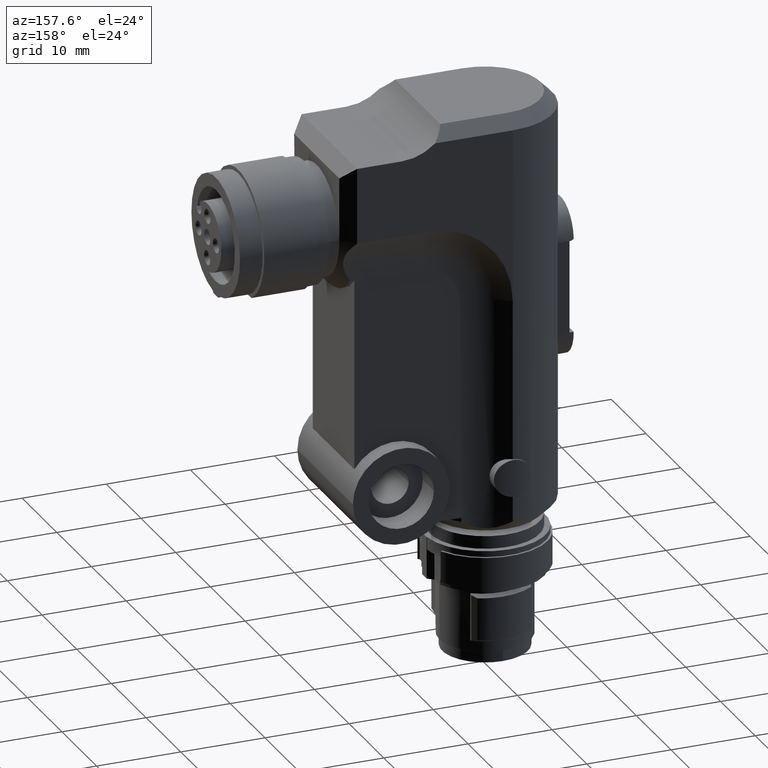
[diagram: clean part render]
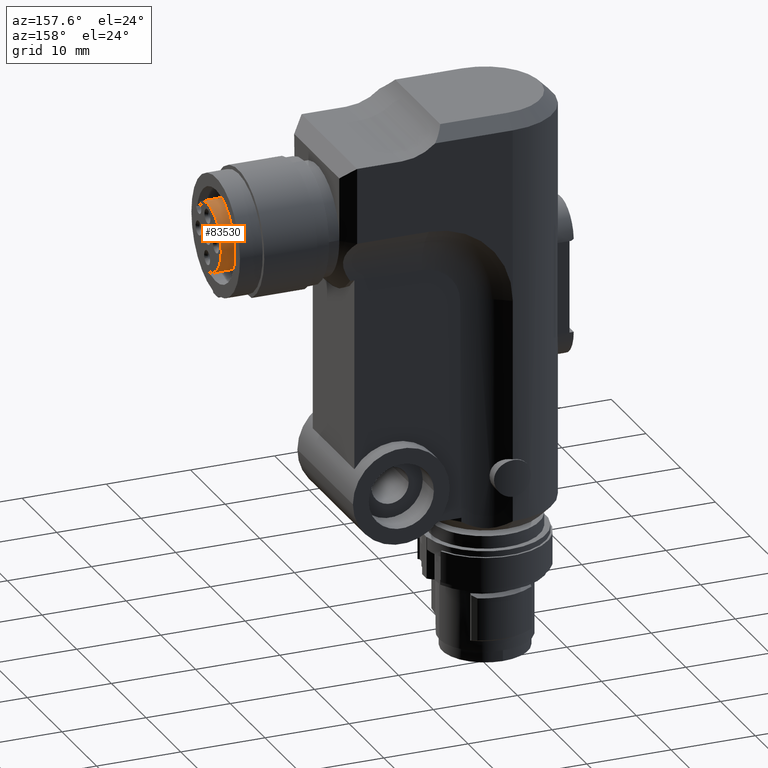
[diagram: same view with one face highlighted and labeled with its STEP entity id]
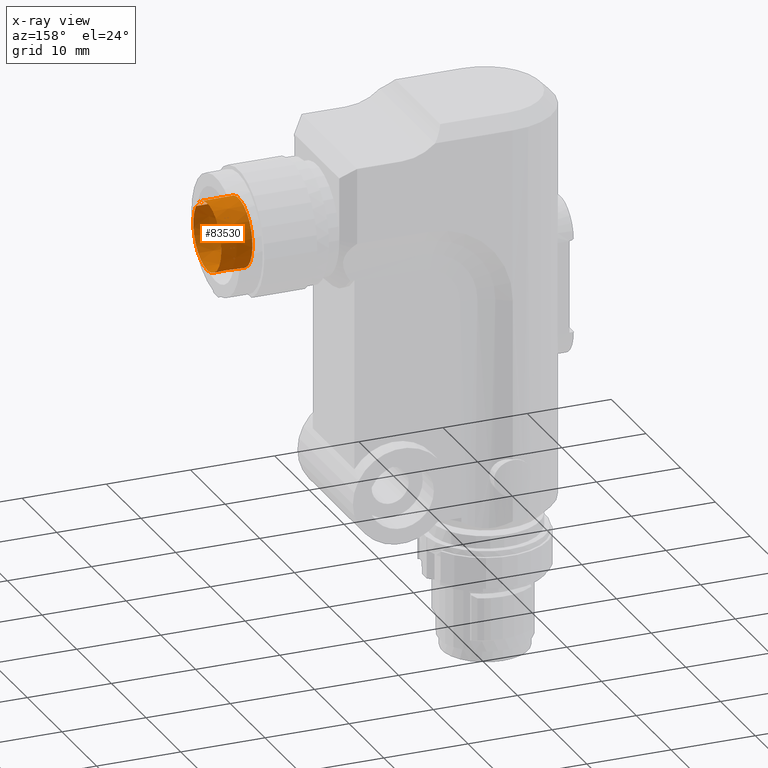
[diagram: x-ray of the same camera — body ghosted, the highlighted face saturated]
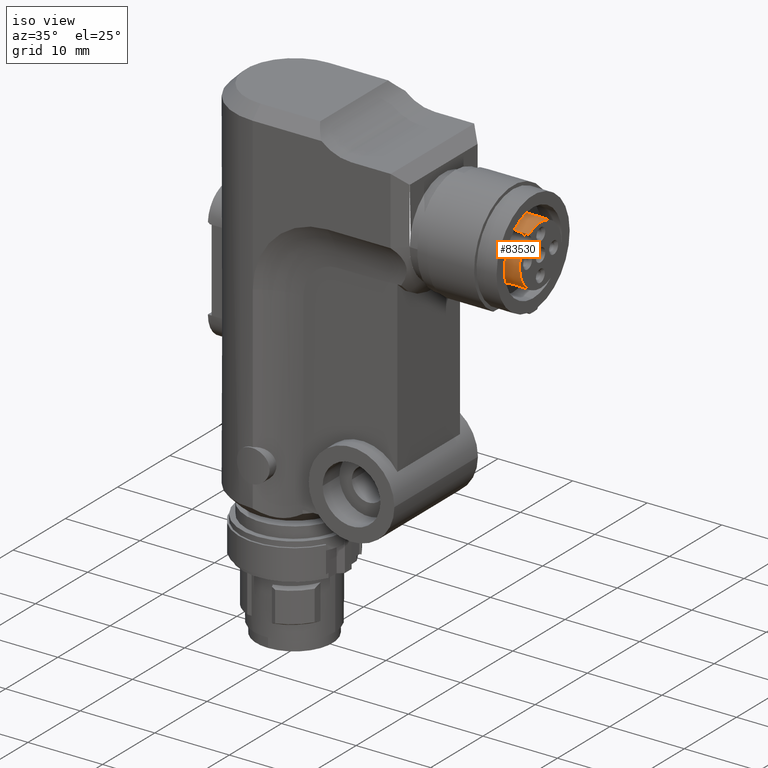
[diagram: same view with one face highlighted and labeled with its STEP entity id]
A machine part, auxiliary view. The second image highlights one B-rep face of the part: STEP entity #83530.
The next image is the same camera in x-ray: the body ghosted, the highlighted face saturated — about 0% of this face is hidden behind the body in this view.
A second angle (iso view) of the same face is appended — the face is thin or edge-on in the first view.
In plain terms, the highlighted conical surface has half-angle 0.5 deg.
Its self-contained STEP definition (entity closure, byte-faithful):
#82240=CARTESIAN_POINT('',(2.26830201667393,29.2999999999977,
41.3565850767745));
#82250=VERTEX_POINT('',#82240);
#82430=CARTESIAN_POINT('',(3.27537773714195,29.299999999997,
40.3840633581256));
#82440=VERTEX_POINT('',#82430);
#82470=CARTESIAN_POINT('',(2.52660115052095E-11,29.2999999999994,
38.0000000000005));
#82480=DIRECTION('',(-7.28965052842945E-13,-1.,-5.66198368905591E-16));
#82490=DIRECTION('',(-0.719339800334304,5.23980261126426E-13,
0.6946583704635));
#82500=AXIS2_PLACEMENT_3D('',#82470,#82480,#82490);
#82510=CIRCLE('',#82500,4.05115507187202);
#82520=EDGE_CURVE('',#82250,#82440,#82510,.T.);
#82640=CARTESIAN_POINT('',(2.24613950108955,24.0999999999982,
41.3336351200612));
#82650=DIRECTION('',(-0.719339800334303,5.20260861031725E-13,
0.6946583704635));
#82660=DIRECTION('',(-0.6946583704635,5.29020829077883E-13,
-0.719339800334304));
#82670=AXIS2_PLACEMENT_3D('',#82640,#82650,#82660);
#82680=PLANE('',#82670);
#82780=CARTESIAN_POINT('',(2.43192133098091E-11,28.,38.0000000000005));
#82790=DIRECTION('',(-7.28967519223718E-13,-1.,-5.49487385914703E-16));
#82800=DIRECTION('',(-0.719339800334304,5.23980261126426E-13,
0.6946583704635));
#82810=AXIS2_PLACEMENT_3D('',#82780,#82790,#82800);
#82820=CONICAL_SURFACE('',#82810,4.0625,0.00872664625997165);
#82830=CARTESIAN_POINT('',(2.26830201667392,29.300000000001,
41.3565850767745));
#82840=CARTESIAN_POINT('',(2.26640429658774,29.608333336283,
41.3546199300979));
#82850=CARTESIAN_POINT('',(2.26450651831933,29.9166666718344,
41.3526547231719));
#82860=CARTESIAN_POINT('',(2.2626086815087,30.2250000066502,
41.3506894556237));
#82870=CARTESIAN_POINT('',(2.26071084469808,30.5333333414661,
41.3487241880755));
#82880=CARTESIAN_POINT('',(2.25881294934523,30.8416666755464,
41.346758859905));
#82890=CARTESIAN_POINT('',(2.25691499508717,31.1500000088861,
41.3447934707364));
#82900=CARTESIAN_POINT('',(2.25501704082911,31.4583333422259,
41.3428280815677));
#82910=CARTESIAN_POINT('',(2.25311902766585,31.766666674825,
41.340862631401));
#82920=CARTESIAN_POINT('',(2.25122095523135,32.0750000066787,
41.3388971198571));
#82930=CARTESIAN_POINT('',(2.24932288279685,32.3833333385323,
41.3369316083132));
#82940=CARTESIAN_POINT('',(2.24742475109112,32.6916666696404,
41.3349660353922));
#82950=CARTESIAN_POINT('',(2.24552655974508,32.9999999999979,
41.3330004007118));
#82960=B_SPLINE_CURVE_WITH_KNOTS('',3,(#82830,#82840,#82850,#82860,
#82870,#82880,#82890,#82900,#82910,#82920,#82930,#82940,#82950),
.UNSPECIFIED.,.F.,.F.,(4,3,3,3,4),(0.,0.925036315349378,1.85007263076582
,2.77510894624748,3.70014526179251),.UNSPECIFIED.);
#82970=SURFACE_CURVE('',#82960,(#82680,#82820),.CURVE_3D.);
#82980=CARTESIAN_POINT('',(2.24552655974507,32.9999999999982,
41.3330004007117));
#82990=VERTEX_POINT('',#82980);
#83000=EDGE_CURVE('',#82250,#82990,#82970,.T.);
#83180=ORIENTED_EDGE('',*,*,#83000,.T.);
#83190=ORIENTED_EDGE('',*,*,#82520,.F.);
#83200=CARTESIAN_POINT('',(2.93484215687759,24.0999999999977,
40.0314284418459));
#83210=DIRECTION('',(0.719339800334303,-5.20260861031725E-13,
-0.6946583704635));
#83220=DIRECTION('',(0.6946583704635,-5.29020829077883E-13,
0.719339800334304));
#83230=AXIS2_PLACEMENT_3D('',#83200,#83210,#83220);
#83240=PLANE('',#83230);
#83250=CARTESIAN_POINT('',(3.25260228021311,32.9999999999977,
40.3604786820629));
#83260=CARTESIAN_POINT('',(3.25450047155898,32.6916666696675,
40.3624443167431));
#83270=CARTESIAN_POINT('',(3.25639860326458,32.3833333385801,
40.364409889664));
#83280=CARTESIAN_POINT('',(3.25829667569899,32.0750000067402,
40.3663754012078));
#83290=CARTESIAN_POINT('',(3.26019474813341,31.7666666749002,
40.3683409127516));
#83300=CARTESIAN_POINT('',(3.26209276129663,31.458333342308,
40.3703063629183));
#83310=CARTESIAN_POINT('',(3.26399071555469,31.1500000089682,
40.372271752087));
#83320=CARTESIAN_POINT('',(3.26588866981275,30.8416666756284,
40.3742371412556));
#83330=CARTESIAN_POINT('',(3.26778656516564,30.5333333415412,
40.3762024694261));
#83340=CARTESIAN_POINT('',(3.26968440197635,30.2250000067114,
40.3781677369744));
#83350=CARTESIAN_POINT('',(3.27158223878707,29.9166666718815,
40.3801330045228));
#83360=CARTESIAN_POINT('',(3.27348001705561,29.6083333363092,
40.3820982114489));
#83370=CARTESIAN_POINT('',(3.27537773714196,29.299999999999,
40.3840633581256));
#83380=B_SPLINE_CURVE_WITH_KNOTS('',3,(#83250,#83260,#83270,#83280,
#83290,#83300,#83310,#83320,#83330,#83340,#83350,#83360,#83370),
.UNSPECIFIED.,.F.,.F.,(4,3,3,3,4),(0.,0.925036315483373,1.85007263094441
,2.77510894638181,3.70014526179432),.UNSPECIFIED.);
#83390=SURFACE_CURVE('',#83380,(#83240,#82820),.CURVE_3D.);
#83400=CARTESIAN_POINT('',(3.2526022802131,32.9999999999975,
40.3604786820628));
#83410=VERTEX_POINT('',#83400);
#83420=EDGE_CURVE('',#83410,#82440,#83390,.T.);
#83430=ORIENTED_EDGE('',*,*,#83420,.T.);
#83440=CARTESIAN_POINT('',(2.79634093658387E-11,32.9999999999999,
38.0000000000005));
#83450=DIRECTION('',(-7.28965052842945E-13,-1.,-5.66198368905591E-16));
#83460=DIRECTION('',(-0.719339800334304,5.23980261126426E-13,
0.6946583704635));
#83470=AXIS2_PLACEMENT_3D('',#83440,#83450,#83460);
#83480=CIRCLE('',#83470,4.01886566104621);
#83490=EDGE_CURVE('',#82990,#83410,#83480,.T.);
#83500=ORIENTED_EDGE('',*,*,#83490,.T.);
#83510=EDGE_LOOP('',(#83500,#83430,#83190,#83180));
#83520=FACE_OUTER_BOUND('',#83510,.T.);
#83530=ADVANCED_FACE('',(#83520),#82820,.T.);